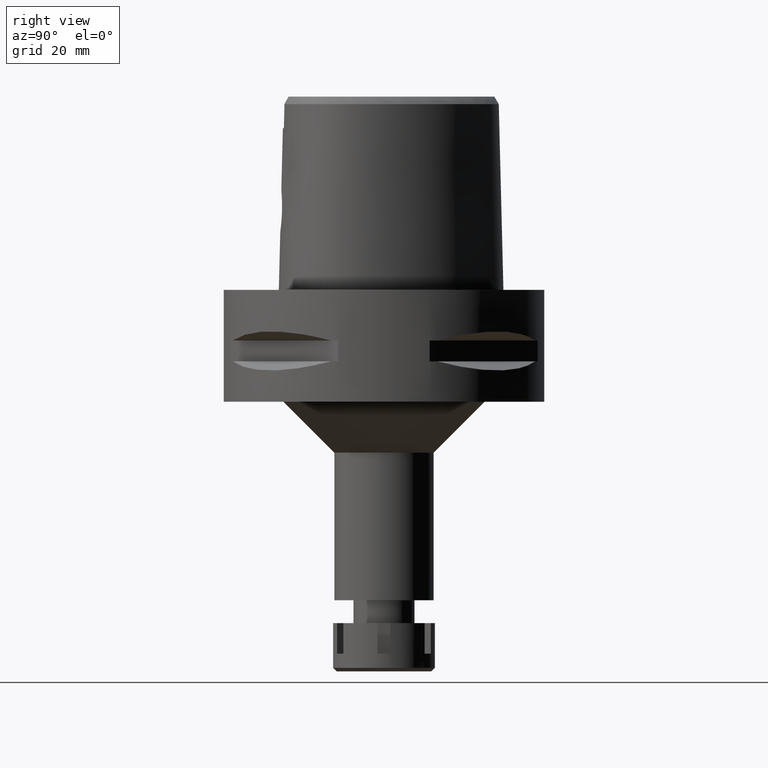
[diagram: clean part render]
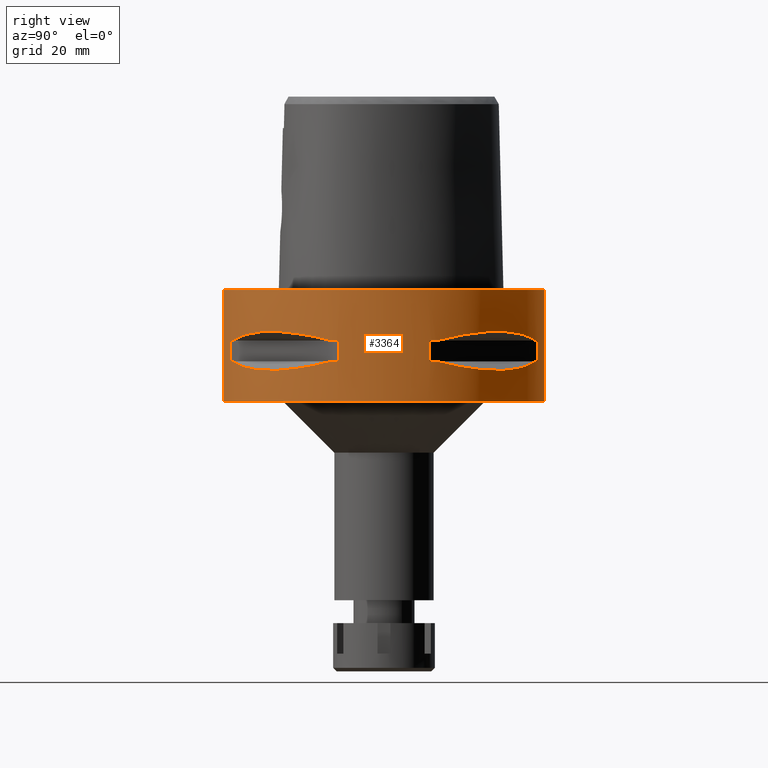
[diagram: same view with one face highlighted and labeled with its STEP entity id]
A machine part, right view. The second image highlights one B-rep face of the part: STEP entity #3364.
In plain terms, the highlighted cylindrical surface (partial cylindrical patch) has radius 31.5 mm, axis along (0, 0, -1).
Its self-contained STEP definition (entity closure, byte-faithful):
#3 = CARTESIAN_POINT ( 'NONE',  ( 29.71690375017999841, -10.44775724750000023, -9.949999999998999201 ) ) ;
#27 = CIRCLE ( 'NONE', #199, 31.50000000000001776 ) ;
#53 = CARTESIAN_POINT ( 'NONE',  ( 23.89673728051777957, 20.65093790438612587, -15.83935804901405042 ) ) ;
#60 = CARTESIAN_POINT ( 'NONE',  ( 10.44775724750000023, -29.71690375017999841, -9.949999999998999201 ) ) ;
#85 = EDGE_CURVE ( 'NONE', #5346, #2817, #838, .T. ) ;
#88 = EDGE_CURVE ( 'NONE', #1978, #4920, #4015, .T. ) ;
#101 = CARTESIAN_POINT ( 'NONE',  ( 28.62019653468597724, 13.25636937904471147, -14.74888225541528186 ) ) ;
#135 = CARTESIAN_POINT ( 'NONE',  ( 30.19251670572000279, -8.981198972019999616, -14.05000000000000071 ) ) ;
#186 = EDGE_CURVE ( 'NONE', #4869, #2356, #4720, .T. ) ;
#189 = CARTESIAN_POINT ( 'NONE',  ( 0.0000000000000000000, -31.50000000000000000, 0.0000000000000000000 ) ) ;
#199 = AXIS2_PLACEMENT_3D ( 'NONE', #3286, #4972, #2872 ) ;
#218 = CARTESIAN_POINT ( 'NONE',  ( 8.981198972019999616, 30.19251670572000279, -14.05000000000000071 ) ) ;
#232 = EDGE_CURVE ( 'NONE', #2411, #4869, #5248, .T. ) ;
#272 = CYLINDRICAL_SURFACE ( 'NONE', #3368, 31.50000000000000000 ) ;
#280 = VECTOR ( 'NONE', #1690, 1000.000000000000000 ) ;
#319 = CARTESIAN_POINT ( 'NONE',  ( 29.71690375017999841, -10.44775724750000023, -9.949999999998999201 ) ) ;
#360 = CARTESIAN_POINT ( 'NONE',  ( 0.0000000000000000000, 1.267509437118000086E-14, -9.950000000000001066 ) ) ;
#392 = CARTESIAN_POINT ( 'NONE',  ( 13.25636937907020929, -28.62019653467701730, -14.74888225542203379 ) ) ;
#414 = ORIENTED_EDGE ( 'NONE', *, *, #1388, .T. ) ;
#425 = ORIENTED_EDGE ( 'NONE', *, *, #1820, .F. ) ;
#436 = B_SPLINE_CURVE_WITH_KNOTS ( 'NONE', 3,
 ( #2941, #4154, #392, #3709, #5374, #4575, #3736, #4599, #3305, #4986, #1603, #4935, #1680, #5426, #3253, #1256, #3762, #3334, #2915, #2832, #1628, #5453, #3276, #4130 ),
 .UNSPECIFIED., .F., .F.,
 ( 4, 1, 1, 1, 1, 1, 2, 2, 2, 1, 1, 1, 1, 1, 2, 2, 4 ),
 ( 0.0000000000000000000, 0.1250000000000063005, 0.1875000000000094369, 0.2187500000000109357, 0.2343750000000116851, 0.2421875000000119627, 0.2460937500000119627, 0.2500000000000119349, 0.5000000000000025535, 0.6249999999999978906, 0.6874999999999955591, 0.7187499999999945599, 0.7343749999999941158, 0.7421874999999936717, 0.7460937499999935607, 0.7499999999999933387, 1.000000000000000000 ),
 .UNSPECIFIED. ) ;
#462 = CARTESIAN_POINT ( 'NONE',  ( 16.98999780422198569, 26.52527364208497573, -15.41788098766329540 ) ) ;
#478 = VECTOR ( 'NONE', #1889, 1000.000000000000000 ) ;
#529 = EDGE_CURVE ( 'NONE', #1714, #5011, #1474, .T. ) ;
#568 = VERTEX_POINT ( 'NONE', #5098 ) ;
#676 = VERTEX_POINT ( 'NONE', #218 ) ;
#709 = DIRECTION ( 'NONE',  ( 0.0000000000000000000, -1.000000000000000000, 0.0000000000000000000 ) ) ;
#716 = AXIS2_PLACEMENT_3D ( 'NONE', #5212, #1434, #1768 ) ;
#722 = B_SPLINE_CURVE_WITH_KNOTS ( 'NONE', 3,
 ( #3775, #1745, #101, #5101, #3417, #4272, #3007, #3366, #3066, #1770, #4688, #53, #2626, #1323, #901, #4243, #3392, #4664, #4222, #462, #2599, #4300, #2190, #876 ),
 .UNSPECIFIED., .F., .F.,
 ( 4, 1, 1, 1, 1, 1, 2, 2, 2, 1, 1, 1, 1, 1, 2, 2, 4 ),
 ( 0.0000000000000000000, 0.1250000000000023870, 0.1875000000000036915, 0.2187500000000045797, 0.2343750000000049960, 0.2421875000000053013, 0.2460937500000055789, 0.2500000000000058842, 0.5000000000000076605, 0.6250000000000083267, 0.6875000000000086597, 0.7187500000000088818, 0.7343750000000086597, 0.7421875000000086597, 0.7460937500000084377, 0.7500000000000083267, 1.000000000000000000 ),
 .UNSPECIFIED. ) ;
#800 = EDGE_CURVE ( 'NONE', #5334, #2675, #4729, .T. ) ;
#833 = CARTESIAN_POINT ( 'NONE',  ( 23.90617837143836510, -20.64154884331411566, -8.160613588453221823 ) ) ;
#835 = CARTESIAN_POINT ( 'NONE',  ( 0.0000000000000000000, -31.50000000000000000, 0.0000000000000000000 ) ) ;
#838 = CIRCLE ( 'NONE', #2879, 31.50000000000000711 ) ;
#876 = CARTESIAN_POINT ( 'NONE',  ( 10.44775724750000023, 29.71690375017999841, -14.05000000000000071 ) ) ;
#901 = CARTESIAN_POINT ( 'NONE',  ( 18.59229662067690114, 25.43927894889767316, -15.62866126334676942 ) ) ;
#917 = ORIENTED_EDGE ( 'NONE', *, *, #800, .T. ) ;
#1114 = ORIENTED_EDGE ( 'NONE', *, *, #2004, .F. ) ;
#1150 = EDGE_CURVE ( 'NONE', #3696, #4270, #5354, .T. ) ;
#1159 = CARTESIAN_POINT ( 'NONE',  ( 30.19251670572000279, 8.981198972017999438, -14.05000000000000071 ) ) ;
#1228 = ORIENTED_EDGE ( 'NONE', *, *, #2963, .T. ) ;
#1256 = CARTESIAN_POINT ( 'NONE',  ( 26.01217882835178585, -17.76952662671725847, -15.52665221626185676 ) ) ;
#1305 = EDGE_LOOP ( 'NONE', ( #2280, #5225, #2177, #3175, #2326, #1114, #917, #3643 ) ) ;
#1323 = CARTESIAN_POINT ( 'NONE',  ( 20.18579225689579104, 24.23018836742823723, -15.78559396979392560 ) ) ;
#1345 = EDGE_CURVE ( 'NONE', #4825, #3953, #1504, .T. ) ;
#1371 = CARTESIAN_POINT ( 'NONE',  ( 25.37277178172504222, 18.81455742157517363, -8.309746333145039188 ) ) ;
#1388 = EDGE_CURVE ( 'NONE', #2546, #4825, #2954, .T. ) ;
#1401 = CARTESIAN_POINT ( 'NONE',  ( 10.44775724750000023, -29.71690375017999841, -14.05000000000000071 ) ) ;
#1434 = DIRECTION ( 'NONE',  ( 0.0000000000000000000, 0.0000000000000000000, -1.000000000000000000 ) ) ;
#1474 = CIRCLE ( 'NONE', #4907, 31.50000000000000711 ) ;
#1504 = B_SPLINE_CURVE_WITH_KNOTS ( 'NONE', 3,
 ( #60, #2115, #3016, #3374, #4251, #833, #5063, #5139, #3781, #3 ),
 .UNSPECIFIED., .F., .F.,
 ( 4, 2, 2, 2, 4 ),
 ( 0.0000000000000000000, 0.2500000000000001110, 0.5000000000000000000, 0.7500000000000000000, 1.000000000000000000 ),
 .UNSPECIFIED. ) ;
#1508 = CARTESIAN_POINT ( 'NONE',  ( 8.981198972019999616, -30.19251670572000279, -9.950000000000001066 ) ) ;
#1521 = ORIENTED_EDGE ( 'NONE', *, *, #3864, .F. ) ;
#1531 = DIRECTION ( 'NONE',  ( 0.0000000000000000000, 0.0000000000000000000, -1.000000000000000000 ) ) ;
#1564 = DIRECTION ( 'NONE',  ( 0.0000000000000000000, 0.0000000000000000000, 1.000000000000000000 ) ) ;
#1585 = CARTESIAN_POINT ( 'NONE',  ( 0.0000000000000000000, -31.50000000000000000, -22.00000000000000000 ) ) ;
#1603 = CARTESIAN_POINT ( 'NONE',  ( 18.86897208074864096, -25.32725744465734152, -15.69588095933306704 ) ) ;
#1617 = CIRCLE ( 'NONE', #716, 31.50000000000000000 ) ;
#1628 = CARTESIAN_POINT ( 'NONE',  ( 26.54368690921627305, -16.96123479564985459, -15.41365572341332602 ) ) ;
#1648 = CARTESIAN_POINT ( 'NONE',  ( 0.0000000000000000000, 1.267509437118000086E-14, -22.00000000000000000 ) ) ;
#1680 = CARTESIAN_POINT ( 'NONE',  ( 23.08532645888704238, -21.46242677077732353, -15.83938991065408963 ) ) ;
#1690 = DIRECTION ( 'NONE',  ( 0.0000000000000000000, 0.0000000000000000000, -1.000000000000000000 ) ) ;
#1714 = VERTEX_POINT ( 'NONE', #4146 ) ;
#1716 = CARTESIAN_POINT ( 'NONE',  ( 8.981198972017999438, -30.19251670572000279, -9.950000000000001066 ) ) ;
#1743 = DIRECTION ( 'NONE',  ( 0.9433937698468619626, 0.3316748332540863653, 0.0000000000000000000 ) ) ;
#1745 = CARTESIAN_POINT ( 'NONE',  ( 29.31542262584548553, 11.58970337494890224, -14.35229357167063213 ) ) ;
#1768 = DIRECTION ( 'NONE',  ( 0.0000000000000000000, 1.000000000000000000, 0.0000000000000000000 ) ) ;
#1770 = CARTESIAN_POINT ( 'NONE',  ( 26.58330558444425762, 16.89910283486581832, -15.40446471307235754 ) ) ;
#1784 = CARTESIAN_POINT ( 'NONE',  ( 0.0000000000000000000, 1.267509437118000086E-14, -14.05000000000000071 ) ) ;
#1789 = DIRECTION ( 'NONE',  ( 0.9433937698468619626, -0.3316748332540863653, 0.0000000000000000000 ) ) ;
#1815 = AXIS2_PLACEMENT_3D ( 'NONE', #1648, #5008, #2854 ) ;
#1820 = EDGE_CURVE ( 'NONE', #568, #2356, #4665, .T. ) ;
#1882 = LINE ( 'NONE', #4031, #3800 ) ;
#1885 = VECTOR ( 'NONE', #1564, 1000.000000000000000 ) ;
#1889 = DIRECTION ( 'NONE',  ( 0.0000000000000000000, 0.0000000000000000000, -1.000000000000000000 ) ) ;
#1939 = CARTESIAN_POINT ( 'NONE',  ( 0.0000000000000000000, 1.267509437118000086E-14, 3.500000000000000000 ) ) ;
#1964 = DIRECTION ( 'NONE',  ( 0.0000000000000000000, 0.0000000000000000000, -1.000000000000000000 ) ) ;
#1978 = VERTEX_POINT ( 'NONE', #135 ) ;
#1981 = CIRCLE ( 'NONE', #3546, 31.50000000000000711 ) ;
#2004 = EDGE_CURVE ( 'NONE', #5334, #5011, #2304, .T. ) ;
#2077 = CARTESIAN_POINT ( 'NONE',  ( 29.71690375017999841, -10.44775724750000023, -14.05000000000000071 ) ) ;
#2103 = DIRECTION ( 'NONE',  ( 0.0000000000000000000, 0.0000000000000000000, 1.000000000000000000 ) ) ;
#2115 = CARTESIAN_POINT ( 'NONE',  ( 12.70092055726466818, -28.92474506846242122, -9.353547358238495590 ) ) ;
#2141 = CARTESIAN_POINT ( 'NONE',  ( 0.0000000000000000000, 1.267509437118000086E-14, -9.950000000000001066 ) ) ;
#2148 = DIRECTION ( 'NONE',  ( 0.0000000000000000000, 0.0000000000000000000, -1.000000000000000000 ) ) ;
#2177 = ORIENTED_EDGE ( 'NONE', *, *, #4960, .T. ) ;
#2178 = DIRECTION ( 'NONE',  ( 0.3316748332540863653, -0.9433937698468619626, 0.0000000000000000000 ) ) ;
#2190 = CARTESIAN_POINT ( 'NONE',  ( 12.73197616789159525, 28.91382665368562144, -14.65467361754145514 ) ) ;
#2259 = CARTESIAN_POINT ( 'NONE',  ( 14.84430321584965995, 27.88210502980663463, -8.906184731949368327 ) ) ;
#2280 = ORIENTED_EDGE ( 'NONE', *, *, #85, .T. ) ;
#2304 = LINE ( 'NONE', #3971, #478 ) ;
#2326 = ORIENTED_EDGE ( 'NONE', *, *, #529, .T. ) ;
#2356 = VERTEX_POINT ( 'NONE', #5086 ) ;
#2411 = VERTEX_POINT ( 'NONE', #835 ) ;
#2529 = DIRECTION ( 'NONE',  ( 0.3316748332540863653, 0.9433937698468619626, 0.0000000000000000000 ) ) ;
#2546 = VERTEX_POINT ( 'NONE', #1508 ) ;
#2567 = ORIENTED_EDGE ( 'NONE', *, *, #1345, .T. ) ;
#2569 = CARTESIAN_POINT ( 'NONE',  ( 8.981198972017999438, 30.19251670572000279, -9.950000000000001066 ) ) ;
#2599 = CARTESIAN_POINT ( 'NONE',  ( 16.96123479564913694, 26.54368690921650398, -15.41365572341313239 ) ) ;
#2626 = CARTESIAN_POINT ( 'NONE',  ( 21.46242677080035932, 23.08532645886616308, -15.83938991065496715 ) ) ;
#2675 = VERTEX_POINT ( 'NONE', #3623 ) ;
#2795 = CARTESIAN_POINT ( 'NONE',  ( 30.19251670572000279, -8.981198972017999438, -9.950000000000001066 ) ) ;
#2809 = CARTESIAN_POINT ( 'NONE',  ( 10.44775724750000023, 29.71690375017999841, -9.949999999998999201 ) ) ;
#2814 = ORIENTED_EDGE ( 'NONE', *, *, #88, .T. ) ;
#2817 = VERTEX_POINT ( 'NONE', #2569 ) ;
#2823 = DIRECTION ( 'NONE',  ( 0.9584925938322735872, -0.2851174276831918153, 0.0000000000000000000 ) ) ;
#2832 = CARTESIAN_POINT ( 'NONE',  ( 26.52527364208627958, -16.98999780422056816, -15.41788098766324744 ) ) ;
#2840 = FACE_BOUND ( 'NONE', #5184, .T. ) ;
#2854 = DIRECTION ( 'NONE',  ( 0.0000000000000000000, -1.000000000000000000, 0.0000000000000000000 ) ) ;
#2872 = DIRECTION ( 'NONE',  ( 0.2851174276831918153, 0.9584925938322735872, 0.0000000000000000000 ) ) ;
#2879 = AXIS2_PLACEMENT_3D ( 'NONE', #360, #4592, #2529 ) ;
#2903 = EDGE_CURVE ( 'NONE', #2546, #4270, #4895, .T. ) ;
#2915 = CARTESIAN_POINT ( 'NONE',  ( 26.48642424310542509, -17.05047092244215889, -15.42670883407675042 ) ) ;
#2941 = CARTESIAN_POINT ( 'NONE',  ( 10.44775724750000023, -29.71690375017999841, -14.05000000000000071 ) ) ;
#2954 = CIRCLE ( 'NONE', #4564, 31.50000000000001776 ) ;
#2963 = EDGE_CURVE ( 'NONE', #568, #2411, #1617, .T. ) ;
#2967 = DIRECTION ( 'NONE',  ( 0.0000000000000000000, 0.0000000000000000000, 1.000000000000000000 ) ) ;
#3007 = CARTESIAN_POINT ( 'NONE',  ( 26.70521063584491017, 16.70616724745910275, -15.37546661817714444 ) ) ;
#3016 = CARTESIAN_POINT ( 'NONE',  ( 14.84422749192781588, -27.88214534473890538, -8.906206096515598247 ) ) ;
#3066 = CARTESIAN_POINT ( 'NONE',  ( 26.60451452154748253, 16.86571563436660526, -15.39949295786011874 ) ) ;
#3175 = ORIENTED_EDGE ( 'NONE', *, *, #4515, .F. ) ;
#3180 = EDGE_CURVE ( 'NONE', #676, #2817, #1882, .T. ) ;
#3203 = DIRECTION ( 'NONE',  ( 0.0000000000000000000, 0.0000000000000000000, 1.000000000000000000 ) ) ;
#3227 = CARTESIAN_POINT ( 'NONE',  ( 30.19251670572000279, 8.981198972019999616, -9.950000000000001066 ) ) ;
#3253 = CARTESIAN_POINT ( 'NONE',  ( 25.43927894892507169, -18.59229662064666755, -15.62866126334561123 ) ) ;
#3265 = CARTESIAN_POINT ( 'NONE',  ( 30.19251670572000279, -8.981198972017999438, -14.05000000000000071 ) ) ;
#3274 = ORIENTED_EDGE ( 'NONE', *, *, #5082, .T. ) ;
#3276 = CARTESIAN_POINT ( 'NONE',  ( 28.91382665370159089, -12.73197616784618269, -14.65467361752943098 ) ) ;
#3286 = CARTESIAN_POINT ( 'NONE',  ( 0.0000000000000000000, 1.267509437118000086E-14, -14.05000000000000071 ) ) ;
#3305 = CARTESIAN_POINT ( 'NONE',  ( 16.86571563436751475, -26.60451452154716989, -15.39949295786035854 ) ) ;
#3317 = CARTESIAN_POINT ( 'NONE',  ( 0.0000000000000000000, 1.267509437118000086E-14, -9.950000000000001066 ) ) ;
#3334 = CARTESIAN_POINT ( 'NONE',  ( 26.42800887047654967, -17.14106442934675911, -15.43984550238513620 ) ) ;
#3364 = ADVANCED_FACE ( 'NONE', ( #3667, #2840, #3965 ), #272, .T. ) ;
#3366 = CARTESIAN_POINT ( 'NONE',  ( 26.64486562695759275, 16.80193241490600542, -15.38992683735705391 ) ) ;
#3368 = AXIS2_PLACEMENT_3D ( 'NONE', #1939, #1964, #709 ) ;
#3374 = CARTESIAN_POINT ( 'NONE',  ( 18.81455742157512745, -25.37277178172504577, -8.309746333145039188 ) ) ;
#3392 = CARTESIAN_POINT ( 'NONE',  ( 17.35163608580574035, 26.29071741523071282, -15.46976201925525274 ) ) ;
#3401 = ORIENTED_EDGE ( 'NONE', *, *, #2903, .F. ) ;
#3414 = CARTESIAN_POINT ( 'NONE',  ( 0.0000000000000000000, 1.267509437118000086E-14, -14.05000000000000071 ) ) ;
#3417 = CARTESIAN_POINT ( 'NONE',  ( 27.11872488589154528, 16.03138450078616728, -15.26880420107737990 ) ) ;
#3494 = ORIENTED_EDGE ( 'NONE', *, *, #1150, .T. ) ;
#3546 = AXIS2_PLACEMENT_3D ( 'NONE', #5073, #2103, #1789 ) ;
#3623 = CARTESIAN_POINT ( 'NONE',  ( 29.71690375017999841, 10.44775724750000023, -9.949999999998999201 ) ) ;
#3643 = ORIENTED_EDGE ( 'NONE', *, *, #3705, .T. ) ;
#3667 = FACE_OUTER_BOUND ( 'NONE', #4919, .T. ) ;
#3695 = DIRECTION ( 'NONE',  ( 0.0000000000000000000, 0.0000000000000000000, 1.000000000000000000 ) ) ;
#3696 = VERTEX_POINT ( 'NONE', #1401 ) ;
#3705 = EDGE_CURVE ( 'NONE', #2675, #5346, #4007, .T. ) ;
#3709 = CARTESIAN_POINT ( 'NONE',  ( 15.11986997312254033, -27.64634172017490954, -15.11207862404184787 ) ) ;
#3736 = CARTESIAN_POINT ( 'NONE',  ( 16.70616724746217940, -26.70521063584381949, -15.37546661817795624 ) ) ;
#3751 = AXIS2_PLACEMENT_3D ( 'NONE', #3317, #3695, #5383 ) ;
#3762 = CARTESIAN_POINT ( 'NONE',  ( 26.29071741523927841, -17.35163608579630079, -15.46976201925489569 ) ) ;
#3775 = CARTESIAN_POINT ( 'NONE',  ( 29.71690375017999841, 10.44775724750000023, -14.05000000000000071 ) ) ;
#3781 = CARTESIAN_POINT ( 'NONE',  ( 28.92472615203846331, -12.70097436187912265, -9.353533115194341718 ) ) ;
#3800 = VECTOR ( 'NONE', #3203, 1000.000000000000000 ) ;
#3843 = CARTESIAN_POINT ( 'NONE',  ( 20.64154884331406237, 23.90617837143843971, -8.160613588453221823 ) ) ;
#3845 = CARTESIAN_POINT ( 'NONE',  ( 10.44775724750000023, 29.71690375017999841, -14.05000000000000071 ) ) ;
#3864 = EDGE_CURVE ( 'NONE', #3696, #4920, #436, .T. ) ;
#3870 = CARTESIAN_POINT ( 'NONE',  ( 29.71690375017999841, 10.44775724750000023, -9.949999999998999201 ) ) ;
#3896 = CARTESIAN_POINT ( 'NONE',  ( 18.81462633037748233, 25.37272068394555902, -8.309724968578809268 ) ) ;
#3953 = VERTEX_POINT ( 'NONE', #319 ) ;
#3965 = FACE_BOUND ( 'NONE', #1305, .T. ) ;
#3971 = CARTESIAN_POINT ( 'NONE',  ( 30.19251670572000279, 8.981198972017999438, -9.950000000000001066 ) ) ;
#4007 = B_SPLINE_CURVE_WITH_KNOTS ( 'NONE', 3,
 ( #3870, #4657, #5179, #1371, #5149, #3843, #3896, #2259, #4707, #4316 ),
 .UNSPECIFIED., .F., .F.,
 ( 4, 2, 2, 2, 4 ),
 ( 0.0000000000000000000, 0.2500000000000001110, 0.5000000000000000000, 0.7500000000000000000, 1.000000000000000000 ),
 .UNSPECIFIED. ) ;
#4015 = CIRCLE ( 'NONE', #4106, 31.50000000000001776 ) ;
#4031 = CARTESIAN_POINT ( 'NONE',  ( 8.981198972017999438, 30.19251670572000279, -14.05000000000000071 ) ) ;
#4101 = AXIS2_PLACEMENT_3D ( 'NONE', #1784, #2148, #2178 ) ;
#4106 = AXIS2_PLACEMENT_3D ( 'NONE', #4616, #5368, #2823 ) ;
#4130 = CARTESIAN_POINT ( 'NONE',  ( 29.71690375017999841, -10.44775724750000023, -14.05000000000000071 ) ) ;
#4146 = CARTESIAN_POINT ( 'NONE',  ( 29.71690375017999841, 10.44775724750000023, -14.05000000000000071 ) ) ;
#4154 = CARTESIAN_POINT ( 'NONE',  ( 11.58970337496347902, -29.31542262584038028, -14.35229357167449216 ) ) ;
#4205 = VERTEX_POINT ( 'NONE', #2795 ) ;
#4222 = CARTESIAN_POINT ( 'NONE',  ( 17.05047092244498685, 26.48642424310287780, -15.42670883407686411 ) ) ;
#4243 = CARTESIAN_POINT ( 'NONE',  ( 17.76952662673489769, 26.01217882833579154, -15.52665221626253356 ) ) ;
#4251 = CARTESIAN_POINT ( 'NONE',  ( 20.64154884331405881, -23.90617837143841484, -8.160627831321420445 ) ) ;
#4270 = VERTEX_POINT ( 'NONE', #5386 ) ;
#4272 = CARTESIAN_POINT ( 'NONE',  ( 26.84474411198702981, 16.48208282229089505, -15.34094883778014129 ) ) ;
#4300 = CARTESIAN_POINT ( 'NONE',  ( 14.89252659058207939, 27.86285265926221300, -15.10765629752054195 ) ) ;
#4316 = CARTESIAN_POINT ( 'NONE',  ( 10.44775724750000023, 29.71690375017999841, -9.949999999998999201 ) ) ;
#4367 = VECTOR ( 'NONE', #1531, 1000.000000000000000 ) ;
#4407 = ORIENTED_EDGE ( 'NONE', *, *, #186, .T. ) ;
#4452 = EDGE_CURVE ( 'NONE', #1978, #4205, #5004, .T. ) ;
#4515 = EDGE_CURVE ( 'NONE', #1714, #5100, #722, .T. ) ;
#4563 = ORIENTED_EDGE ( 'NONE', *, *, #232, .T. ) ;
#4564 = AXIS2_PLACEMENT_3D ( 'NONE', #2141, #2967, #4648 ) ;
#4575 = CARTESIAN_POINT ( 'NONE',  ( 16.48208282229687427, -26.84474411198493371, -15.34094883778172402 ) ) ;
#4592 = DIRECTION ( 'NONE',  ( 0.0000000000000000000, 0.0000000000000000000, 1.000000000000000000 ) ) ;
#4599 = CARTESIAN_POINT ( 'NONE',  ( 16.80193241490779599, -26.64486562695696037, -15.38992683735752642 ) ) ;
#4616 = CARTESIAN_POINT ( 'NONE',  ( 0.0000000000000000000, 1.267509437118000086E-14, -14.05000000000000071 ) ) ;
#4648 = DIRECTION ( 'NONE',  ( 0.2851174276831918153, -0.9584925938322735872, 0.0000000000000000000 ) ) ;
#4657 = CARTESIAN_POINT ( 'NONE',  ( 28.92474506846249582, 12.70092055726455271, -9.353547358238495590 ) ) ;
#4664 = CARTESIAN_POINT ( 'NONE',  ( 17.14106442935163699, 26.42800887047211944, -15.43984550238531916 ) ) ;
#4665 = LINE ( 'NONE', #4725, #5344 ) ;
#4688 = CARTESIAN_POINT ( 'NONE',  ( 25.32725744468687168, 18.86897208071480136, -15.69588095933130845 ) ) ;
#4707 = CARTESIAN_POINT ( 'NONE',  ( 12.70097436187914752, 28.92472615203846686, -9.353533115194341718 ) ) ;
#4720 = CIRCLE ( 'NONE', #1815, 31.50000000000000000 ) ;
#4725 = CARTESIAN_POINT ( 'NONE',  ( 0.0000000000000000000, 31.50000000000000000, 0.0000000000000000000 ) ) ;
#4729 = CIRCLE ( 'NONE', #3751, 31.50000000000001776 ) ;
#4825 = VERTEX_POINT ( 'NONE', #5273 ) ;
#4869 = VERTEX_POINT ( 'NONE', #1585 ) ;
#4895 = LINE ( 'NONE', #1716, #280 ) ;
#4907 = AXIS2_PLACEMENT_3D ( 'NONE', #3414, #5126, #1743 ) ;
#4919 = EDGE_LOOP ( 'NONE', ( #1228, #4563, #4407, #425 ) ) ;
#4920 = VERTEX_POINT ( 'NONE', #2077 ) ;
#4935 = CARTESIAN_POINT ( 'NONE',  ( 20.65093790434436372, -23.89673728056386182, -15.83935804901581079 ) ) ;
#4960 = EDGE_CURVE ( 'NONE', #676, #5100, #27, .T. ) ;
#4972 = DIRECTION ( 'NONE',  ( 0.0000000000000000000, 0.0000000000000000000, -1.000000000000000000 ) ) ;
#4986 = CARTESIAN_POINT ( 'NONE',  ( 16.89910283486529252, -26.58330558444471947, -15.40446471307232912 ) ) ;
#5004 = LINE ( 'NONE', #3265, #1885 ) ;
#5008 = DIRECTION ( 'NONE',  ( 0.0000000000000000000, 0.0000000000000000000, 1.000000000000000000 ) ) ;
#5011 = VERTEX_POINT ( 'NONE', #1159 ) ;
#5056 = DIRECTION ( 'NONE',  ( 0.0000000000000000000, 0.0000000000000000000, -1.000000000000000000 ) ) ;
#5063 = CARTESIAN_POINT ( 'NONE',  ( 25.37272068394548796, -18.81462633037755339, -8.309724968578809268 ) ) ;
#5073 = CARTESIAN_POINT ( 'NONE',  ( 0.0000000000000000000, 1.267509437118000086E-14, -9.950000000000001066 ) ) ;
#5082 = EDGE_CURVE ( 'NONE', #3953, #4205, #1981, .T. ) ;
#5086 = CARTESIAN_POINT ( 'NONE',  ( 0.0000000000000000000, 31.50000000000000000, -22.00000000000000000 ) ) ;
#5098 = CARTESIAN_POINT ( 'NONE',  ( 0.0000000000000000000, 31.50000000000000000, 0.0000000000000000000 ) ) ;
#5100 = VERTEX_POINT ( 'NONE', #3845 ) ;
#5101 = CARTESIAN_POINT ( 'NONE',  ( 27.64634172018161706, 15.11986997310341962, -15.11207862403678170 ) ) ;
#5126 = DIRECTION ( 'NONE',  ( 0.0000000000000000000, 0.0000000000000000000, -1.000000000000000000 ) ) ;
#5139 = CARTESIAN_POINT ( 'NONE',  ( 27.88210502980660976, -14.84430321584966173, -8.906184731949368327 ) ) ;
#5149 = CARTESIAN_POINT ( 'NONE',  ( 23.90617837143836510, 20.64154884331414408, -8.160627831321420445 ) ) ;
#5179 = CARTESIAN_POINT ( 'NONE',  ( 27.88214534473896222, 14.84422749192776081, -8.906206096515598247 ) ) ;
#5184 = EDGE_LOOP ( 'NONE', ( #3274, #5413, #2814, #1521, #3494, #3401, #414, #2567 ) ) ;
#5212 = CARTESIAN_POINT ( 'NONE',  ( 0.0000000000000000000, 1.267509437118000086E-14, 0.0000000000000000000 ) ) ;
#5225 = ORIENTED_EDGE ( 'NONE', *, *, #3180, .F. ) ;
#5248 = LINE ( 'NONE', #189, #4367 ) ;
#5273 = CARTESIAN_POINT ( 'NONE',  ( 10.44775724750000023, -29.71690375017999841, -9.949999999998999201 ) ) ;
#5334 = VERTEX_POINT ( 'NONE', #3227 ) ;
#5344 = VECTOR ( 'NONE', #5056, 1000.000000000000000 ) ;
#5346 = VERTEX_POINT ( 'NONE', #2809 ) ;
#5354 = CIRCLE ( 'NONE', #4101, 31.50000000000000711 ) ;
#5368 = DIRECTION ( 'NONE',  ( 0.0000000000000000000, 0.0000000000000000000, -1.000000000000000000 ) ) ;
#5374 = CARTESIAN_POINT ( 'NONE',  ( 16.03138450079733346, -27.11872488588761954, -15.26880420108033398 ) ) ;
#5383 = DIRECTION ( 'NONE',  ( 0.9584925938322735872, 0.2851174276831918153, 0.0000000000000000000 ) ) ;
#5386 = CARTESIAN_POINT ( 'NONE',  ( 8.981198972017999438, -30.19251670572000279, -14.05000000000000071 ) ) ;
#5413 = ORIENTED_EDGE ( 'NONE', *, *, #4452, .F. ) ;
#5426 = CARTESIAN_POINT ( 'NONE',  ( 24.23018836746479110, -20.18579225685548195, -15.78559396979238194 ) ) ;
#5453 = CARTESIAN_POINT ( 'NONE',  ( 27.86285265927817889, -14.89252659053665795, -15.10765629750851602 ) ) ;